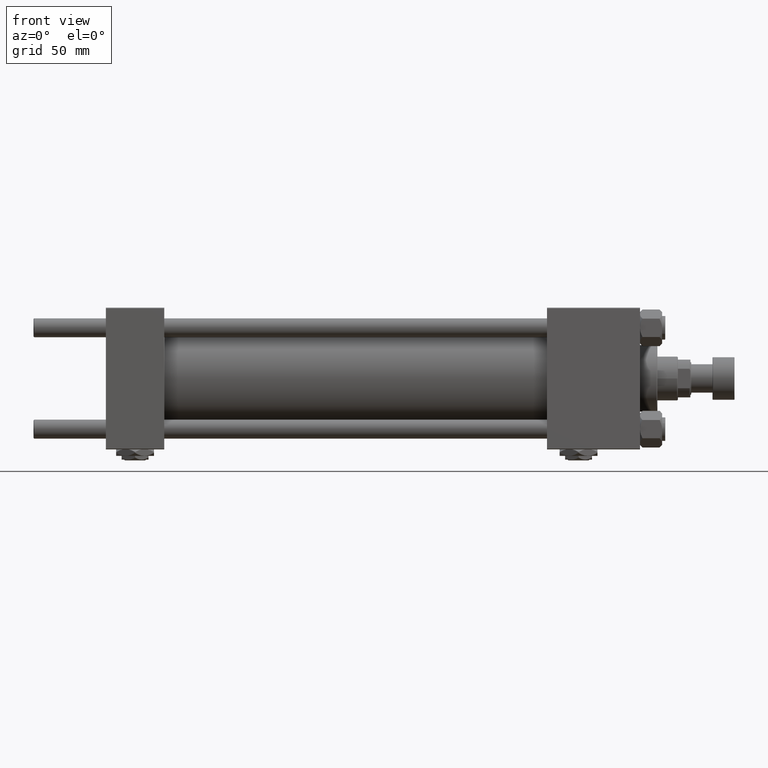
[diagram: clean part render]
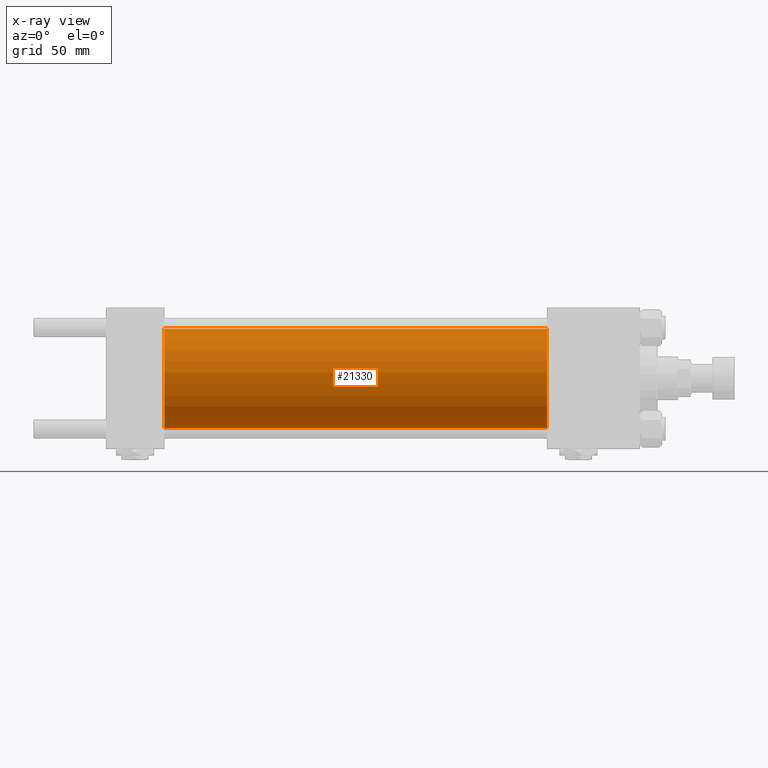
[diagram: x-ray — body ghosted, one internal face saturated and labeled with its STEP entity id]
A machine part, front view, then the same camera in x-ray: the body is ghosted and one INTERNAL B-rep face — a face not visible from any outside direction — is saturated and labeled: STEP entity #21330.
In plain terms, the highlighted cylindrical surface (partial cylindrical patch) has radius 31.5 mm, axis along (-1, -0, -0).
Its self-contained STEP definition (entity closure, byte-faithful):
#6532 = CARTESIAN_POINT ( 'NONE',  ( 279.9999999999999432, 0.000000000000000000, 31.50000000000000000 ) ) ;
#7039 = CYLINDRICAL_SURFACE ( 'NONE', #12760, 31.50000000000000000 ) ;
#7571 = EDGE_CURVE ( 'NONE', #47771, #28462, #27980, .T. ) ;
#8655 = DIRECTION ( 'NONE',  ( -1.000000000000000000, -0.000000000000000000, -0.000000000000000000 ) ) ;
#8775 = CARTESIAN_POINT ( 'NONE',  ( 279.9999999999999432, 3.857637417314162689E-15, -31.50000000000000000 ) ) ;
#9919 = EDGE_CURVE ( 'NONE', #21683, #33994, #47004, .T. ) ;
#10653 = AXIS2_PLACEMENT_3D ( 'NONE', #39438, #19344, #35469 ) ;
#12760 = AXIS2_PLACEMENT_3D ( 'NONE', #19219, #17251, #13279 ) ;
#13279 = DIRECTION ( 'NONE',  ( 0.000000000000000000, 0.000000000000000000, 1.000000000000000000 ) ) ;
#14667 = CARTESIAN_POINT ( 'NONE',  ( 37.00000000000000000, 3.857637417314162689E-15, -31.50000000000000000 ) ) ;
#16606 = CARTESIAN_POINT ( 'NONE',  ( 279.9999999999999432, 3.857637417314162689E-15, -31.50000000000000000 ) ) ;
#17251 = DIRECTION ( 'NONE',  ( -1.000000000000000000, -0.000000000000000000, -0.000000000000000000 ) ) ;
#17504 = EDGE_LOOP ( 'NONE', ( #33990, #37456, #39584, #45481 ) ) ;
#19219 = CARTESIAN_POINT ( 'NONE',  ( 279.9999999999999432, 0.000000000000000000, 0.000000000000000000 ) ) ;
#19344 = DIRECTION ( 'NONE',  ( 1.000000000000000000, 0.000000000000000000, 0.000000000000000000 ) ) ;
#19784 = CARTESIAN_POINT ( 'NONE',  ( 279.9999999999999432, 0.000000000000000000, 31.50000000000000000 ) ) ;
#20515 = CIRCLE ( 'NONE', #34025, 31.50000000000000000 ) ;
#21330 = ADVANCED_FACE ( 'NONE', ( #27673 ), #7039, .F. ) ;
#21683 = VERTEX_POINT ( 'NONE', #19784 ) ;
#24052 = VECTOR ( 'NONE', #8655, 1000.000000000000000 ) ;
#25505 = EDGE_CURVE ( 'NONE', #33994, #28462, #20515, .T. ) ;
#25840 = CIRCLE ( 'NONE', #10653, 31.50000000000000000 ) ;
#26903 = DIRECTION ( 'NONE',  ( -1.000000000000000000, -0.000000000000000000, -0.000000000000000000 ) ) ;
#27673 = FACE_OUTER_BOUND ( 'NONE', #17504, .T. ) ;
#27980 = LINE ( 'NONE', #16606, #24052 ) ;
#28462 = VERTEX_POINT ( 'NONE', #14667 ) ;
#33029 = DIRECTION ( 'NONE',  ( 1.000000000000000000, 0.000000000000000000, 0.000000000000000000 ) ) ;
#33990 = ORIENTED_EDGE ( 'NONE', *, *, #35962, .T. ) ;
#33994 = VERTEX_POINT ( 'NONE', #46317 ) ;
#34025 = AXIS2_PLACEMENT_3D ( 'NONE', #36472, #33029, #45453 ) ;
#35469 = DIRECTION ( 'NONE',  ( 0.000000000000000000, 0.000000000000000000, -1.000000000000000000 ) ) ;
#35962 = EDGE_CURVE ( 'NONE', #21683, #47771, #25840, .T. ) ;
#36472 = CARTESIAN_POINT ( 'NONE',  ( 37.00000000000000000, 0.000000000000000000, 0.000000000000000000 ) ) ;
#37456 = ORIENTED_EDGE ( 'NONE', *, *, #7571, .T. ) ;
#38658 = VECTOR ( 'NONE', #26903, 1000.000000000000000 ) ;
#39438 = CARTESIAN_POINT ( 'NONE',  ( 279.9999999999999432, 0.000000000000000000, 0.000000000000000000 ) ) ;
#39584 = ORIENTED_EDGE ( 'NONE', *, *, #25505, .F. ) ;
#45453 = DIRECTION ( 'NONE',  ( 0.000000000000000000, 0.000000000000000000, -1.000000000000000000 ) ) ;
#45481 = ORIENTED_EDGE ( 'NONE', *, *, #9919, .F. ) ;
#46317 = CARTESIAN_POINT ( 'NONE',  ( 37.00000000000000000, 0.000000000000000000, 31.50000000000000000 ) ) ;
#47004 = LINE ( 'NONE', #6532, #38658 ) ;
#47771 = VERTEX_POINT ( 'NONE', #8775 ) ;